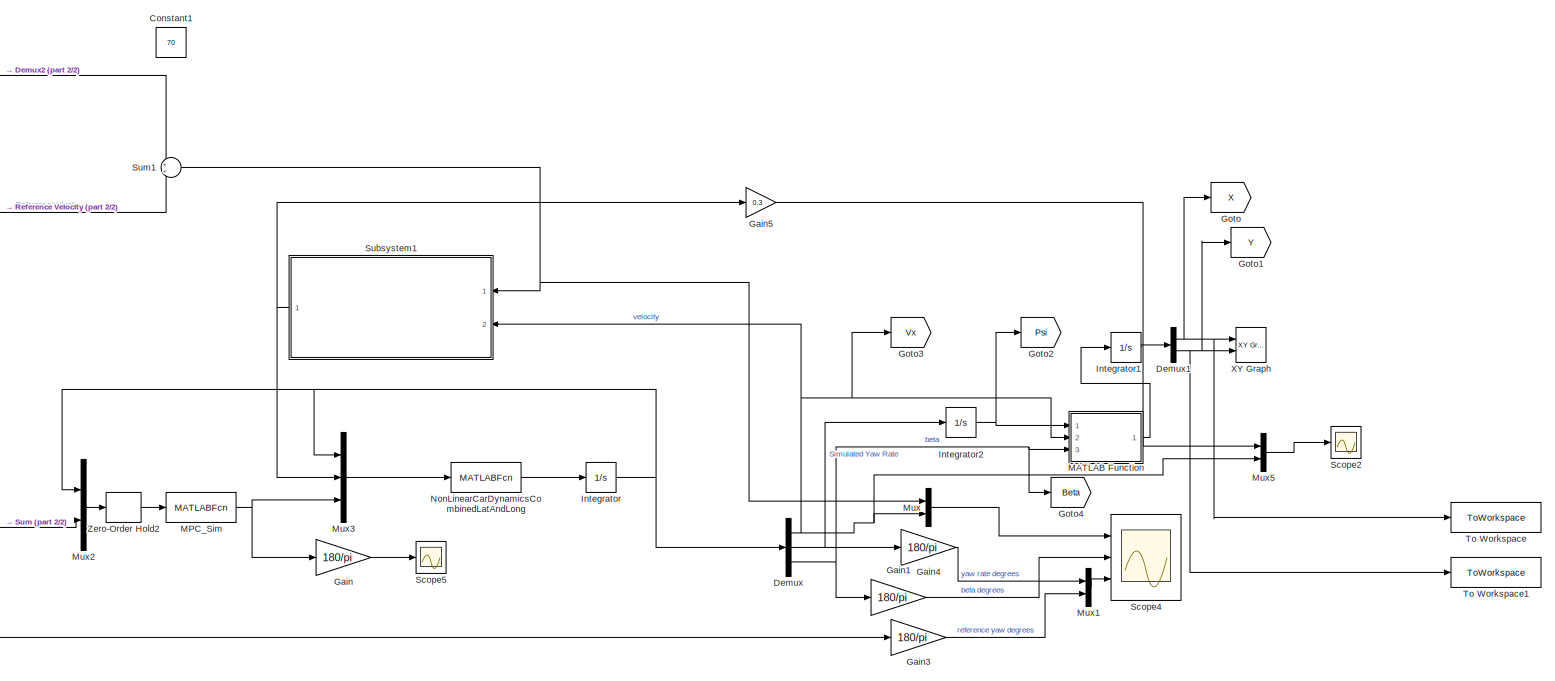
[diagram: root canvas - part 1/2, most of the canvas]
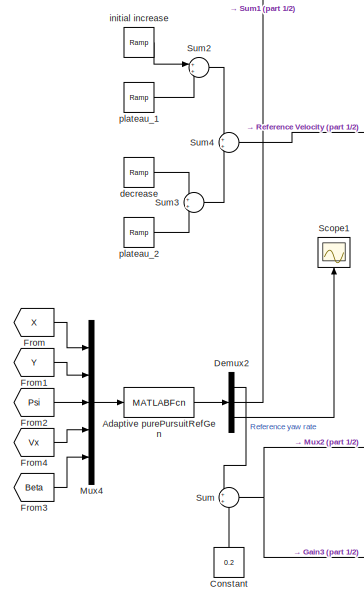
[diagram: root canvas - part 2/2, left side, full height]
MODEL slx_7b6080b2d2b1
KIND model
CONFIG AbsTol = auto
CONFIG EnableMultiTasking = off
CONFIG FixedStep = auto
CONFIG MaxStep = auto
CONFIG MinStep = auto
CONFIG RelTol = 1e-3
CONFIG SampleTimeConstraint = Unconstrained
CONFIG Solver = VariableStepAuto
CONFIG SolverName = VariableStepAuto
CONFIG StartTime = 0.0
CONFIG StopTime = 400
BLOCK [MATLABFcn] Adaptive purePursuitRefGen
  MATLABFcn = AdaptivepurePursuitRefGen(u(1),u(2),u(3),u(4),u(5),1,Track)
  OutputDimensions = 3
  Ports = [1, 1]
BLOCK [Constant] Constant
  Commented = on
  Value = 0.2
BLOCK [Constant] Constant1
  Value = 70
BLOCK [Demux] Demux
  Outputs = 3
  Ports = [1, 3]
BLOCK [Demux] Demux1
  Outputs = 2
  Ports = [1, 2]
BLOCK [Demux] Demux2
  Outputs = 3
  Ports = [1, 3]
BLOCK [From] From
  GotoTag = X
BLOCK [From] From1
  GotoTag = Y
BLOCK [From] From2
  GotoTag = Psi
BLOCK [From] From3
  GotoTag = Beta
BLOCK [From] From4
  GotoTag = Vx
BLOCK [Gain] Gain
  Gain = 180/pi
BLOCK [Gain] Gain1
  Gain = 180/pi
BLOCK [Gain] Gain3
  Gain = 180/pi
BLOCK [Gain] Gain4
  Gain = 180/pi
BLOCK [Gain] Gain5
  Gain = 0.3
BLOCK [Goto] Goto
  GotoTag = X
BLOCK [Goto] Goto1
  GotoTag = Y
BLOCK [Goto] Goto2
  GotoTag = Psi
BLOCK [Goto] Goto3
  GotoTag = Vx
BLOCK [Goto] Goto4
  GotoTag = Beta
BLOCK [Integrator] Integrator
  InitialCondition = [20 ; 0; 0]
  Ports = [1, 1]
BLOCK [Integrator] Integrator1
  InitialCondition = [X0, Y0]
  Ports = [1, 1]
BLOCK [Integrator] Integrator2
  InitialCondition = Psi0
  Ports = [1, 1]
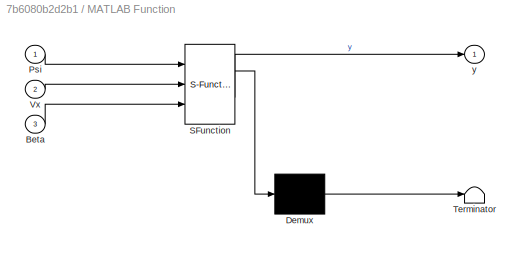
BLOCK [SubSystem] MATLAB Function
  ErrorFcn = Stateflow.Translate.translate
  PermitHierarchicalResolution = ExplicitOnly
  Ports = [3, 1]
  RequestExecContextInheritance = off
  SFBlockType = MATLAB Function
  TreatAsAtomicUnit = on
BLOCK [Demux] MATLAB Function/ Demux 
  Outputs = 1
  Ports = [1, 1]
BLOCK [S-Function] MATLAB Function/ SFunction 
  EnableBusSupport = on
  FunctionName = sf_sfun
  PortCounts = [3 2]
  Ports = [3, 2]
  SFcnIsStateOwnerBlock = off
  SFunctionDeploymentMode = off
  Tag = Stateflow S-Function Full_control_with_variable_reference_velocity_2018b 2
BLOCK [Terminator] MATLAB Function/ Terminator 
BLOCK [Inport] MATLAB Function/Beta
  Port = 3
BLOCK [Inport] MATLAB Function/Psi
BLOCK [Inport] MATLAB Function/Vx
  Port = 2
BLOCK [Outport] MATLAB Function/y
  VectorParamsAs1DForOutWhenUnconnected = off
BLOCK [MATLABFcn] MPC_Sim
  MATLABFcn = MPC_Sim(u(1),u(2),u(3),u(4),controller)
  OutputDimensions = 1
  Ports = [1, 1]
BLOCK [Mux] Mux
  DisplayOption = bar
  Inputs = 2
  Ports = [2, 1]
BLOCK [Mux] Mux1
  DisplayOption = bar
  Inputs = 2
  Ports = [2, 1]
BLOCK [Mux] Mux2
  DisplayOption = bar
  Inputs = 2
  Ports = [2, 1]
BLOCK [Mux] Mux3
  DisplayOption = bar
  Inputs = 3
  Ports = [3, 1]
BLOCK [Mux] Mux4
  DisplayOption = bar
  Inputs = 5
  Ports = [5, 1]
BLOCK [Mux] Mux5
  DisplayOption = bar
  Inputs = 2
  Ports = [2, 1]
BLOCK [MATLABFcn] NonLinearCarDynamicsCombinedLatAndLong
  MATLABFcn = LongDynWorking(u(1),u(2),u(3),u(4),u(5),0,1)
  OutputDimensions = 3
  Ports = [1, 1]
BLOCK [Scope] Scope1
  Floating = off
  NumInputPorts = 1
  Ports = [1]
  ScopeSpecificationString = Simulink.scopes.TimeScopeBlockCfg('CurrentConfiguration', extmgr.ConfigurationSet(extmgr.Configuration('Core','General UI',true),extmgr.Configuration('Core','Source UI',true),extmgr.Configuration('Sources','WiredSimulink',true,'DataLoggingVariableName','ScopeData1'),extmgr.Configuration('Visuals','Time Domain',true,'SerializedDisplays',{struct('MinYLimReal','-148.3372','MaxYLimReal','130.23242','Y...<+1431ch>
BLOCK [Scope] Scope2
  Floating = off
  NumInputPorts = 1
  Ports = [1]
  ScopeSpecificationString = Simulink.scopes.TimeScopeBlockCfg('CurrentConfiguration', extmgr.ConfigurationSet(extmgr.Configuration('Core','General UI',true),extmgr.Configuration('Core','Source UI',true),extmgr.Configuration('Sources','WiredSimulink',true,'DataLoggingVariableName','ScopeData2'),extmgr.Configuration('Visuals','Time Domain',true,'SerializedDisplays',{struct('MinYLimReal','1.41014','MaxYLimReal','22.06554','YLab...<+1476ch>
BLOCK [Scope] Scope4
  Floating = off
  NumInputPorts = 3
  Ports = [3]
  ScopeSpecificationString = Simulink.scopes.TimeScopeBlockCfg('CurrentConfiguration', extmgr.ConfigurationSet(extmgr.Configuration('Core','General UI',true),extmgr.Configuration('Core','Source UI',true),extmgr.Configuration('Sources','WiredSimulink',true,'DataLoggingVariableName','ScopeData1'),extmgr.Configuration('Visuals','Time Domain',true,'SerializedDisplays',{struct('MinYLimReal','9.0515','MaxYLimReal','54.54983','YLabe...<+2813ch>
BLOCK [Scope] Scope5
  Floating = off
  NumInputPorts = 1
  Ports = [1]
  ScopeSpecificationString = Simulink.scopes.TimeScopeBlockCfg('CurrentConfiguration', extmgr.ConfigurationSet(extmgr.Configuration('Core','General UI',true),extmgr.Configuration('Core','Source UI',true),extmgr.Configuration('Sources','WiredSimulink',true,'DataLoggingVariableName','ScopeData5'),extmgr.Configuration('Visuals','Time Domain',true,'SerializedDisplays',{struct('MinYLimReal','-15.12438','MaxYLimReal','5.07774','YLa...<+1421ch>
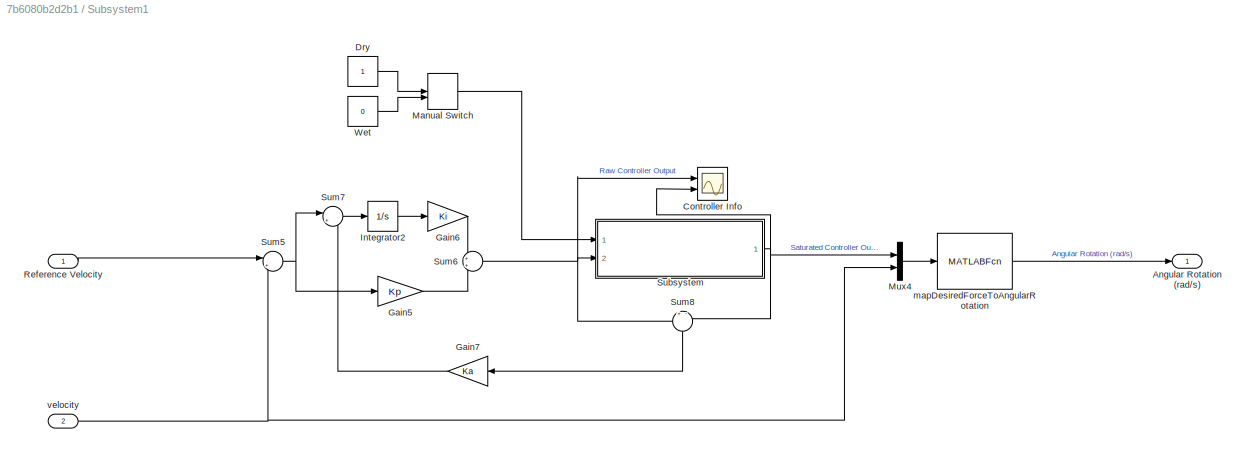
BLOCK [SubSystem] Subsystem1
  Ports = [2, 1]
  RequestExecContextInheritance = off
BLOCK [Outport] Subsystem1/Angular Rotation (rad//s)
  VectorParamsAs1DForOutWhenUnconnected = off
BLOCK [Scope] Subsystem1/Controller Info
  Floating = off
  NumInputPorts = 2
  Ports = [2]
  ScopeSpecificationString = Simulink.scopes.TimeScopeBlockCfg('CurrentConfiguration', extmgr.ConfigurationSet(extmgr.Configuration('Core','General UI',true),extmgr.Configuration('Core','Source UI',true),extmgr.Configuration('Sources','WiredSimulink',true,'DataLoggingVariableName','ScopeData2'),extmgr.Configuration('Visuals','Time Domain',true,'SerializedDisplays',{struct('MinYLimReal','-17899.53893','MaxYLimReal','11195.8504...<+1492ch>
BLOCK [Constant] Subsystem1/Dry
BLOCK [Gain] Subsystem1/Gain5
  Gain = Kp
  Multiplication = Matrix(K*u)
BLOCK [Gain] Subsystem1/Gain6
  Gain = Ki
  Multiplication = Matrix(K*u)
BLOCK [Gain] Subsystem1/Gain7
  Gain = Ka
  Multiplication = Matrix(K*u)
BLOCK [Integrator] Subsystem1/Integrator2
  InitialCondition = 0.1
  Ports = [1, 1]
BLOCK [ManualSwitch] Subsystem1/Manual Switch
BLOCK [Mux] Subsystem1/Mux4
  DisplayOption = bar
  Inputs = 2
  Ports = [2, 1]
BLOCK [Inport] Subsystem1/Reference Velocity
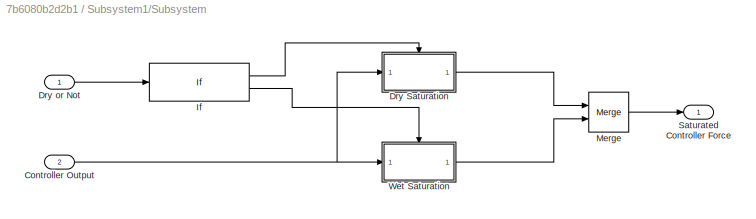
BLOCK [SubSystem] Subsystem1/Subsystem
  Ports = [2, 1]
  RequestExecContextInheritance = off
BLOCK [Inport] Subsystem1/Subsystem/Controller Output
  Port = 2
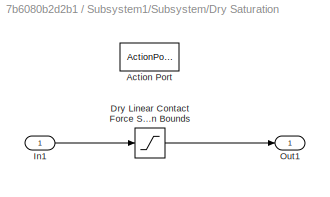
BLOCK [SubSystem] Subsystem1/Subsystem/Dry Saturation
  Ports = [1, 1, 0, 0, 0, 0, 0, 1]
  RequestExecContextInheritance = off
  TreatAsAtomicUnit = on
BLOCK [ActionPort] Subsystem1/Subsystem/Dry Saturation/Action Port
BLOCK [Saturate] Subsystem1/Subsystem/Dry Saturation/Dry Linear Contact Force Saturation Bounds
  LowerLimit = -9000
  UpperLimit = 9000
BLOCK [Inport] Subsystem1/Subsystem/Dry Saturation/In1
BLOCK [Outport] Subsystem1/Subsystem/Dry Saturation/Out1
  VectorParamsAs1DForOutWhenUnconnected = off
BLOCK [Inport] Subsystem1/Subsystem/Dry or Not
BLOCK [If] Subsystem1/Subsystem/If
  Ports = [1, 2]
BLOCK [Merge] Subsystem1/Subsystem/Merge
  InitialOutput = [0]
  Ports = [2, 1]
BLOCK [Outport] Subsystem1/Subsystem/Saturated Controller Force
  VectorParamsAs1DForOutWhenUnconnected = off
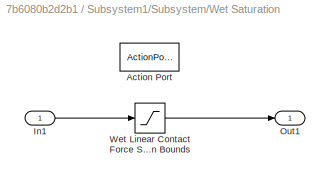
BLOCK [SubSystem] Subsystem1/Subsystem/Wet Saturation
  Ports = [1, 1, 0, 0, 0, 0, 0, 1]
  RequestExecContextInheritance = off
  TreatAsAtomicUnit = on
BLOCK [ActionPort] Subsystem1/Subsystem/Wet Saturation/Action Port
BLOCK [Inport] Subsystem1/Subsystem/Wet Saturation/In1
BLOCK [Outport] Subsystem1/Subsystem/Wet Saturation/Out1
  VectorParamsAs1DForOutWhenUnconnected = off
BLOCK [Saturate] Subsystem1/Subsystem/Wet Saturation/Wet Linear Contact Force Saturation Bounds
  LowerLimit = -5000
  UpperLimit = 5000
BLOCK [Sum] Subsystem1/Sum5
  Inputs = |+-
  Ports = [2, 1]
BLOCK [Sum] Subsystem1/Sum6
  Ports = [2, 1]
BLOCK [Sum] Subsystem1/Sum7
  Inputs = |+-
  Ports = [2, 1]
BLOCK [Sum] Subsystem1/Sum8
  Inputs = +-
  Ports = [2, 1]
BLOCK [Constant] Subsystem1/Wet
  Value = 0
BLOCK [MATLABFcn] Subsystem1/mapDesiredForceToAngularRotation
  MATLABFcn = MappingFtoW(u(1),u(2))
  OutputDimensions = 1
  Ports = [1, 1]
BLOCK [Inport] Subsystem1/velocity
  Port = 2
BLOCK [Sum] Sum
  Ports = [2, 1]
BLOCK [Sum] Sum1
  Ports = [2, 1]
BLOCK [Sum] Sum2
  Commented = on
  Ports = [2, 1]
BLOCK [Sum] Sum3
  Commented = on
  Ports = [2, 1]
BLOCK [Sum] Sum4
  Commented = on
  Ports = [2, 1]
BLOCK [ToWorkspace] To Workspace
  MaxDataPoints = inf
  Ports = [1]
  SampleTime = -1
  Save2DSignal = 2-D array (concatenate along first dimension)
  SaveFormat = Timeseries
  VariableName = Xgl
BLOCK [ToWorkspace] To Workspace1
  FixptAsFi = on
  MaxDataPoints = inf
  Ports = [1]
  SampleTime = -1
  Save2DSignal = 2-D array (concatenate along first dimension)
  SaveFormat = Timeseries
  VariableName = Ygl
BLOCK [Reference] XY Graph  REF=simulink/Sinks/XY Graph
  Ports = [2]
  SourceBlock = simulink/Sinks/XY Graph
  SourceProductBaseCode = SL
  SourceType = XY scope.
BLOCK [ZeroOrderHold] Zero-Order Hold2
  SampleTime = Ts
BLOCK [Reference] decrease  REF=simulink/Sources/Ramp
  Commented = on
  Ports = [0, 1]
  SourceBlock = simulink/Sources/Ramp
  SourceProductBaseCode = SL
  SourceType = Ramp
BLOCK [Reference] initial increase  REF=simulink/Sources/Ramp
  Commented = on
  Ports = [0, 1]
  SourceBlock = simulink/Sources/Ramp
  SourceProductBaseCode = SL
  SourceType = Ramp
BLOCK [Reference] plateau_1  REF=simulink/Sources/Ramp
  Commented = on
  Ports = [0, 1]
  SourceBlock = simulink/Sources/Ramp
  SourceProductBaseCode = SL
  SourceType = Ramp
BLOCK [Reference] plateau_2  REF=simulink/Sources/Ramp
  Commented = on
  Ports = [0, 1]
  SourceBlock = simulink/Sources/Ramp
  SourceProductBaseCode = SL
  SourceType = Ramp
LINE Adaptive purePursuitRefGen:1 -> Demux2:1
LINE Constant:1 -> Sum:2
NET Demux1:1 -> Goto:1, To Workspace:1, XY Graph:1
NET Demux1:2 -> Goto1:1, To Workspace1:1, XY Graph:2
LINE Demux2:1 -> Sum:1
LINE Demux2:2 -> Sum1:1
LINE Demux2:3 -> Scope1:1
NET Demux:1 -> Goto3:1, MATLAB Function:2, Mux5:2, Mux:2, Subsystem1:2
NET Demux:2 -> Gain4:1, Integrator2:1
NET Demux:3 -> Gain1:1, Goto4:1, MATLAB Function:3
LINE From1:1 -> Mux4:2
LINE From2:1 -> Mux4:3
LINE From3:1 -> Mux4:5
LINE From4:1 -> Mux4:4
LINE From:1 -> Mux4:1
LINE Gain1:1 -> Scope4:2
LINE Gain3:1 -> Mux1:2
LINE Gain4:1 -> Mux1:1
LINE Gain5:1 -> Mux5:1
LINE Gain:1 -> Scope5:1
LINE Integrator1:1 -> Demux1:1
NET Integrator2:1 -> Goto2:1, MATLAB Function:1
NET Integrator:1 -> Demux:1, Mux2:1, Mux3:1
LINE MATLAB Function:1 -> Integrator1:1
NET MPC_Sim:1 -> Gain:1, Mux3:3
LINE Mux1:1 -> Scope4:3
LINE Mux2:1 -> Zero-Order Hold2:1
LINE Mux3:1 -> NonLinearCarDynamicsCombinedLatAndLong:1
LINE Mux4:1 -> Adaptive purePursuitRefGen:1
LINE Mux5:1 -> Scope2:1
LINE Mux:1 -> Scope4:1
LINE NonLinearCarDynamicsCombinedLatAndLong:1 -> Integrator:1
LINE Subsystem1/Dry:1 -> Subsystem1/Manual Switch:1
LINE Subsystem1/Gain5:1 -> Subsystem1/Sum6:2
LINE Subsystem1/Gain6:1 -> Subsystem1/Sum6:1
LINE Subsystem1/Gain7:1 -> Subsystem1/Sum7:2
LINE Subsystem1/Integrator2:1 -> Subsystem1/Gain6:1
LINE Subsystem1/Manual Switch:1 -> Subsystem1/Subsystem:1
LINE Subsystem1/Mux4:1 -> Subsystem1/mapDesiredForceToAngularRotation:1
LINE Subsystem1/Reference Velocity:1 -> Subsystem1/Sum5:1
NET Subsystem1/Subsystem/Controller Output:1 -> Subsystem1/Subsystem/Dry Saturation:1, Subsystem1/Subsystem/Wet Saturation:1
LINE Subsystem1/Subsystem/Dry Saturation/Dry Linear Contact Force Saturation Bounds:1 -> Subsystem1/Subsystem/Dry Saturation/Out1:1
LINE Subsystem1/Subsystem/Dry Saturation/In1:1 -> Subsystem1/Subsystem/Dry Saturation/Dry Linear Contact Force Saturation Bounds:1
LINE Subsystem1/Subsystem/Dry Saturation:1 -> Subsystem1/Subsystem/Merge:1
LINE Subsystem1/Subsystem/Dry or Not:1 -> Subsystem1/Subsystem/If:1
LINE Subsystem1/Subsystem/If:1 -> Subsystem1/Subsystem/Dry Saturation:ifaction
LINE Subsystem1/Subsystem/If:2 -> Subsystem1/Subsystem/Wet Saturation:ifaction
LINE Subsystem1/Subsystem/Merge:1 -> Subsystem1/Subsystem/Saturated Controller Force:1
LINE Subsystem1/Subsystem/Wet Saturation/In1:1 -> Subsystem1/Subsystem/Wet Saturation/Wet Linear Contact Force Saturation Bounds:1
LINE Subsystem1/Subsystem/Wet Saturation/Wet Linear Contact Force Saturation Bounds:1 -> Subsystem1/Subsystem/Wet Saturation/Out1:1
LINE Subsystem1/Subsystem/Wet Saturation:1 -> Subsystem1/Subsystem/Merge:2
NET Subsystem1/Subsystem:1 -> Subsystem1/Controller Info:2, Subsystem1/Mux4:1, Subsystem1/Sum8:2
NET Subsystem1/Sum5:1 -> Subsystem1/Gain5:1, Subsystem1/Sum7:1
NET Subsystem1/Sum6:1 -> Subsystem1/Controller Info:1, Subsystem1/Subsystem:2, Subsystem1/Sum8:1
LINE Subsystem1/Sum7:1 -> Subsystem1/Integrator2:1
LINE Subsystem1/Sum8:1 -> Subsystem1/Gain7:1
LINE Subsystem1/Wet:1 -> Subsystem1/Manual Switch:2
LINE Subsystem1/mapDesiredForceToAngularRotation:1 -> Subsystem1/Angular Rotation (rad//s):1
NET Subsystem1/velocity:1 -> Subsystem1/Mux4:2, Subsystem1/Sum5:2
NET Subsystem1:1 -> Gain5:1, Mux3:2
NET Sum1:1 -> Mux:1, Subsystem1:1
LINE Sum2:1 -> Sum4:1
LINE Sum3:1 -> Sum4:2
LINE Sum4:1 -> Sum1:2
NET Sum:1 -> Gain3:1, Mux2:2
LINE Zero-Order Hold2:1 -> MPC_Sim:1
LINE decrease:1 -> Sum3:1
LINE initial increase:1 -> Sum2:1
LINE plateau_1:1 -> Sum2:2
LINE plateau_2:1 -> Sum3:2
note: NET lines group one-source signal fan-out (src -> all destinations, sorted); 1:1 wires keep LINE
CHART MATLAB Function states=1 transitions=1
  STATE_LABEL 'eML_blk_kernel()'
  STATE_LABEL 'SCRIPT:\nfunction y = fcn(Psi, Vx, Beta)\n    Vy = Beta*Vx;\n    V = sqrt(Vx^2 + Vy^2);\n    \n    Xdot = V*cos(Psi+Beta);\n    Ydot = V*sin(Psi+Beta);\n    \n    y = [Xdot, Ydot];\nend'
